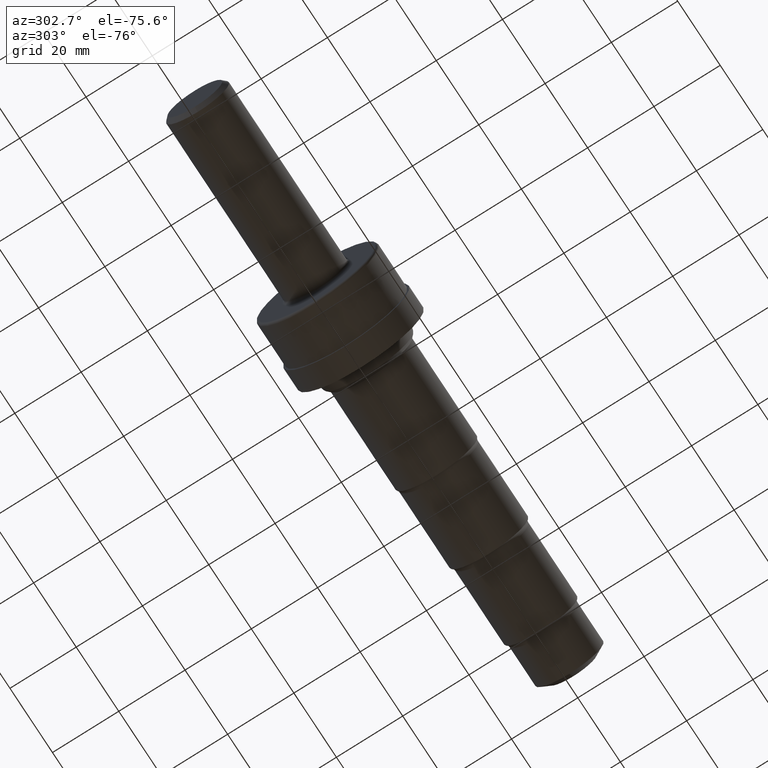
[diagram: clean part render]
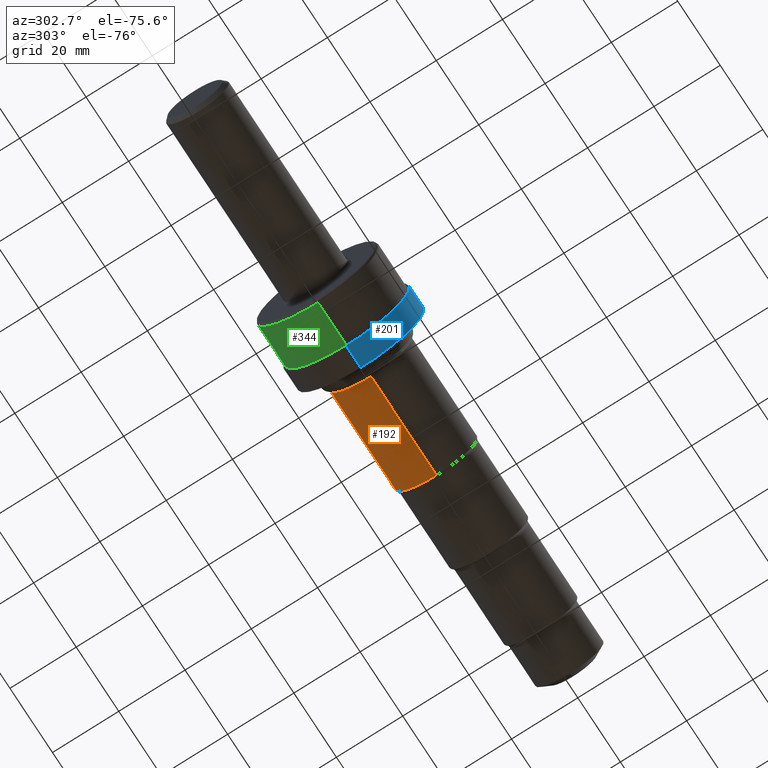
[diagram: same view with three faces highlighted in distinct colors, each labeled with its STEP entity id]
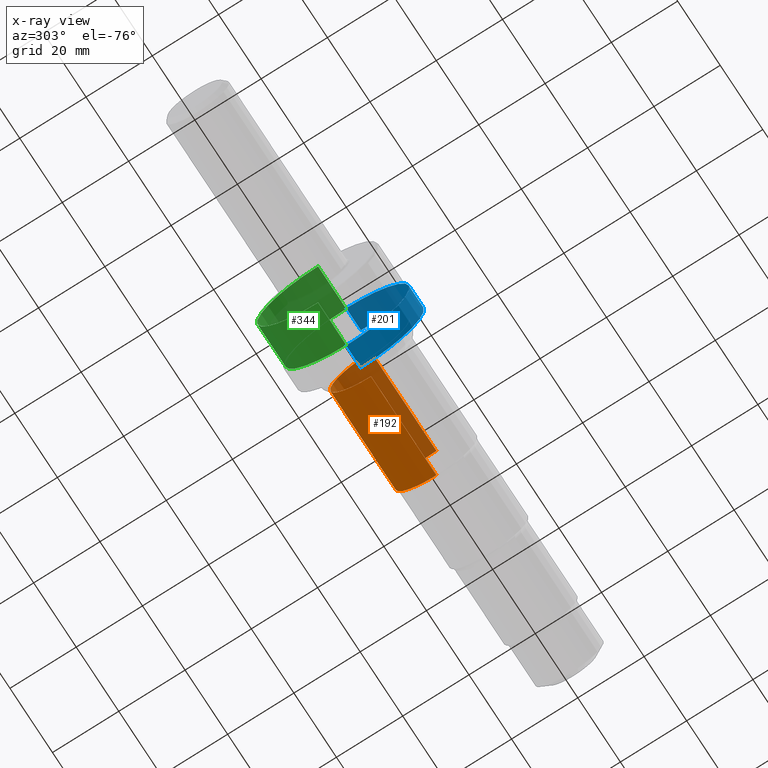
[diagram: x-ray of the same camera — body ghosted, the three highlighted faces saturated]
A machine part, auxiliary view with three faces highlighted in distinct colors.
The next image is the same camera in x-ray (body ghosted, the three faces saturated) — at least one of them is partly hidden behind the body in this view.
Their STEP definitions:

[orange] entity #192 — the highlighted cylindrical surface (partial cylindrical patch) has radius 12.3825 mm, axis along (-1, -0, -0).
#18 = EDGE_LOOP ( 'NONE', ( #532, #853, #24, #259 ) ) ;
#24 = ORIENTED_EDGE ( 'NONE', *, *, #966, .F. ) ;
#36 = VERTEX_POINT ( 'NONE', #974 ) ;
#39 = AXIS2_PLACEMENT_3D ( 'NONE', #1030, #559, #60 ) ;
#46 = CARTESIAN_POINT ( 'NONE',  ( 3.258523011444504291, 0.0000000000000000000, 0.0000000000000000000 ) ) ;
#60 = DIRECTION ( 'NONE',  ( 0.0000000000000000000, 0.0000000000000000000, 1.000000000000000000 ) ) ;
#61 = DIRECTION ( 'NONE',  ( -1.000000000000000000, -0.0000000000000000000, -0.0000000000000000000 ) ) ;
#63 = DIRECTION ( 'NONE',  ( 0.0000000000000000000, 0.0000000000000000000, 1.000000000000000000 ) ) ;
#111 = AXIS2_PLACEMENT_3D ( 'NONE', #46, #864, #63 ) ;
#126 = EDGE_CURVE ( 'NONE', #441, #36, #348, .T. ) ;
#178 = VECTOR ( 'NONE', #61, 39.37007874015748143 ) ;
#181 = CARTESIAN_POINT ( 'NONE',  ( 4.469999999999999751, 0.0000000000000000000, 0.4874999999999999889 ) ) ;
#191 = CIRCLE ( 'NONE', #39, 0.4874999999999999889 ) ;
#192 = ADVANCED_FACE ( 'NONE', ( #517 ), #273, .T. ) ;
#212 = CARTESIAN_POINT ( 'NONE',  ( 0.0000000000000000000, 0.0000000000000000000, 0.0000000000000000000 ) ) ;
#259 = ORIENTED_EDGE ( 'NONE', *, *, #385, .F. ) ;
#273 = CYLINDRICAL_SURFACE ( 'NONE', #1032, 0.4874999999999999889 ) ;
#348 = LINE ( 'NONE', #957, #369 ) ;
#366 = VERTEX_POINT ( 'NONE', #433 ) ;
#369 = VECTOR ( 'NONE', #390, 39.37007874015748143 ) ;
#385 = EDGE_CURVE ( 'NONE', #534, #366, #832, .T. ) ;
#390 = DIRECTION ( 'NONE',  ( -1.000000000000000000, -0.0000000000000000000, -0.0000000000000000000 ) ) ;
#433 = CARTESIAN_POINT ( 'NONE',  ( 3.258523011444504291, 0.0000000000000000000, 0.4874999999999999889 ) ) ;
#441 = VERTEX_POINT ( 'NONE', #522 ) ;
#517 = FACE_OUTER_BOUND ( 'NONE', #18, .T. ) ;
#522 = CARTESIAN_POINT ( 'NONE',  ( 4.469999999999999751, 5.970153145843346608E-17, -0.4874999999999999889 ) ) ;
#532 = ORIENTED_EDGE ( 'NONE', *, *, #766, .T. ) ;
#534 = VERTEX_POINT ( 'NONE', #181 ) ;
#554 = DIRECTION ( 'NONE',  ( -1.000000000000000000, -0.0000000000000000000, -0.0000000000000000000 ) ) ;
#559 = DIRECTION ( 'NONE',  ( -1.000000000000000000, -0.0000000000000000000, -0.0000000000000000000 ) ) ;
#683 = CARTESIAN_POINT ( 'NONE',  ( 0.0000000000000000000, 0.0000000000000000000, 0.4874999999999999889 ) ) ;
#766 = EDGE_CURVE ( 'NONE', #534, #441, #191, .T. ) ;
#832 = LINE ( 'NONE', #683, #178 ) ;
#853 = ORIENTED_EDGE ( 'NONE', *, *, #126, .T. ) ;
#864 = DIRECTION ( 'NONE',  ( -1.000000000000000000, -0.0000000000000000000, -0.0000000000000000000 ) ) ;
#895 = CIRCLE ( 'NONE', #111, 0.4874999999999999889 ) ;
#923 = DIRECTION ( 'NONE',  ( 0.0000000000000000000, 0.0000000000000000000, 1.000000000000000000 ) ) ;
#957 = CARTESIAN_POINT ( 'NONE',  ( 0.0000000000000000000, 5.970153145843346608E-17, -0.4874999999999999889 ) ) ;
#966 = EDGE_CURVE ( 'NONE', #366, #36, #895, .T. ) ;
#974 = CARTESIAN_POINT ( 'NONE',  ( 3.258523011444504291, 6.279517367087336711E-17, -0.4874999999999999889 ) ) ;
#1030 = CARTESIAN_POINT ( 'NONE',  ( 4.469999999999999751, 0.0000000000000000000, 0.0000000000000000000 ) ) ;
#1032 = AXIS2_PLACEMENT_3D ( 'NONE', #212, #554, #923 ) ;

[blue] entity #201 — the highlighted cylindrical surface (partial cylindrical patch) has radius 19.05 mm, axis along (-1, -0, -0).
#33 = AXIS2_PLACEMENT_3D ( 'NONE', #1005, #438, #535 ) ;
#57 = EDGE_LOOP ( 'NONE', ( #531, #971, #444, #590 ) ) ;
#108 = EDGE_CURVE ( 'NONE', #826, #507, #987, .T. ) ;
#144 = VERTEX_POINT ( 'NONE', #632 ) ;
#149 = DIRECTION ( 'NONE',  ( 0.0000000000000000000, 0.0000000000000000000, 1.000000000000000000 ) ) ;
#166 = EDGE_CURVE ( 'NONE', #917, #144, #332, .T. ) ;
#179 = CARTESIAN_POINT ( 'NONE',  ( 3.069999999999999840, 0.0000000000000000000, 0.7500000000000001110 ) ) ;
#201 = ADVANCED_FACE ( 'NONE', ( #919 ), #902, .T. ) ;
#231 = CARTESIAN_POINT ( 'NONE',  ( 3.069999999999999840, 0.0000000000000000000, 0.0000000000000000000 ) ) ;
#285 = EDGE_CURVE ( 'NONE', #826, #917, #410, .T. ) ;
#328 = CARTESIAN_POINT ( 'NONE',  ( 2.799999999999999822, 9.184850993605150903E-17, -0.7500000000000001110 ) ) ;
#332 = CIRCLE ( 'NONE', #716, 0.7500000000000001110 ) ;
#333 = EDGE_CURVE ( 'NONE', #507, #144, #912, .T. ) ;
#410 = LINE ( 'NONE', #1019, #837 ) ;
#438 = DIRECTION ( 'NONE',  ( -1.000000000000000000, -0.0000000000000000000, -0.0000000000000000000 ) ) ;
#444 = ORIENTED_EDGE ( 'NONE', *, *, #333, .T. ) ;
#457 = CARTESIAN_POINT ( 'NONE',  ( 0.0000000000000000000, 0.0000000000000000000, 0.7500000000000001110 ) ) ;
#471 = DIRECTION ( 'NONE',  ( -1.000000000000000000, -0.0000000000000000000, -0.0000000000000000000 ) ) ;
#488 = DIRECTION ( 'NONE',  ( -1.000000000000000000, -0.0000000000000000000, -0.0000000000000000000 ) ) ;
#507 = VERTEX_POINT ( 'NONE', #179 ) ;
#531 = ORIENTED_EDGE ( 'NONE', *, *, #285, .F. ) ;
#535 = DIRECTION ( 'NONE',  ( 0.0000000000000000000, 0.0000000000000000000, 1.000000000000000000 ) ) ;
#590 = ORIENTED_EDGE ( 'NONE', *, *, #166, .F. ) ;
#632 = CARTESIAN_POINT ( 'NONE',  ( 2.799999999999999822, 0.0000000000000000000, 0.7500000000000001110 ) ) ;
#641 = DIRECTION ( 'NONE',  ( -1.000000000000000000, -0.0000000000000000000, -0.0000000000000000000 ) ) ;
#696 = VECTOR ( 'NONE', #488, 39.37007874015748143 ) ;
#716 = AXIS2_PLACEMENT_3D ( 'NONE', #1027, #471, #947 ) ;
#725 = DIRECTION ( 'NONE',  ( -1.000000000000000000, -0.0000000000000000000, -0.0000000000000000000 ) ) ;
#826 = VERTEX_POINT ( 'NONE', #949 ) ;
#837 = VECTOR ( 'NONE', #641, 39.37007874015748143 ) ;
#902 = CYLINDRICAL_SURFACE ( 'NONE', #33, 0.7500000000000001110 ) ;
#912 = LINE ( 'NONE', #457, #696 ) ;
#917 = VERTEX_POINT ( 'NONE', #328 ) ;
#919 = FACE_OUTER_BOUND ( 'NONE', #57, .T. ) ;
#947 = DIRECTION ( 'NONE',  ( 0.0000000000000000000, 0.0000000000000000000, 1.000000000000000000 ) ) ;
#949 = CARTESIAN_POINT ( 'NONE',  ( 3.069999999999999840, 9.184850993605150903E-17, -0.7500000000000001110 ) ) ;
#971 = ORIENTED_EDGE ( 'NONE', *, *, #108, .T. ) ;
#987 = CIRCLE ( 'NONE', #993, 0.7500000000000001110 ) ;
#993 = AXIS2_PLACEMENT_3D ( 'NONE', #231, #725, #149 ) ;
#1005 = CARTESIAN_POINT ( 'NONE',  ( 0.0000000000000000000, 0.0000000000000000000, 0.0000000000000000000 ) ) ;
#1019 = CARTESIAN_POINT ( 'NONE',  ( 0.0000000000000000000, 9.184850993605150903E-17, -0.7500000000000001110 ) ) ;
#1027 = CARTESIAN_POINT ( 'NONE',  ( 2.799999999999999822, 0.0000000000000000000, 0.0000000000000000000 ) ) ;

[green] entity #344 — the highlighted cylindrical surface (partial cylindrical patch) has radius 18.415 mm, axis along (-1, -0, -0).
#128 = CARTESIAN_POINT ( 'NONE',  ( 0.0000000000000000000, 0.0000000000000000000, 0.0000000000000000000 ) ) ;
#134 = CIRCLE ( 'NONE', #316, 0.7249999999999998668 ) ;
#223 = CARTESIAN_POINT ( 'NONE',  ( 0.0000000000000000000, 0.0000000000000000000, 0.7249999999999998668 ) ) ;
#240 = CARTESIAN_POINT ( 'NONE',  ( 2.799999999999999822, 0.0000000000000000000, 0.0000000000000000000 ) ) ;
#276 = AXIS2_PLACEMENT_3D ( 'NONE', #128, #357, #644 ) ;
#278 = CARTESIAN_POINT ( 'NONE',  ( 0.0000000000000000000, 8.878689293818309581E-17, -0.7249999999999998668 ) ) ;
#292 = ORIENTED_EDGE ( 'NONE', *, *, #475, .T. ) ;
#314 = EDGE_CURVE ( 'NONE', #509, #953, #817, .T. ) ;
#316 = AXIS2_PLACEMENT_3D ( 'NONE', #429, #764, #350 ) ;
#344 = ADVANCED_FACE ( 'NONE', ( #491 ), #893, .T. ) ;
#350 = DIRECTION ( 'NONE',  ( 0.0000000000000000000, 0.0000000000000000000, 1.000000000000000000 ) ) ;
#353 = CARTESIAN_POINT ( 'NONE',  ( 2.799999999999999822, 0.0000000000000000000, 0.7249999999999998668 ) ) ;
#357 = DIRECTION ( 'NONE',  ( -1.000000000000000000, -0.0000000000000000000, -0.0000000000000000000 ) ) ;
#361 = DIRECTION ( 'NONE',  ( -1.000000000000000000, -0.0000000000000000000, -0.0000000000000000000 ) ) ;
#368 = ORIENTED_EDGE ( 'NONE', *, *, #499, .F. ) ;
#400 = DIRECTION ( 'NONE',  ( -1.000000000000000000, -0.0000000000000000000, -0.0000000000000000000 ) ) ;
#429 = CARTESIAN_POINT ( 'NONE',  ( 2.279999999999999805, 0.0000000000000000000, 0.0000000000000000000 ) ) ;
#475 = EDGE_CURVE ( 'NONE', #1047, #739, #781, .T. ) ;
#491 = FACE_OUTER_BOUND ( 'NONE', #530, .T. ) ;
#493 = DIRECTION ( 'NONE',  ( 0.0000000000000000000, 0.0000000000000000000, 1.000000000000000000 ) ) ;
#494 = CIRCLE ( 'NONE', #859, 0.7249999999999998668 ) ;
#499 = EDGE_CURVE ( 'NONE', #953, #739, #134, .T. ) ;
#509 = VERTEX_POINT ( 'NONE', #353 ) ;
#530 = EDGE_LOOP ( 'NONE', ( #878, #292, #368, #754 ) ) ;
#550 = VECTOR ( 'NONE', #361, 39.37007874015748143 ) ;
#644 = DIRECTION ( 'NONE',  ( 0.0000000000000000000, 0.0000000000000000000, 1.000000000000000000 ) ) ;
#718 = CARTESIAN_POINT ( 'NONE',  ( 2.799999999999999822, 8.878689293818309581E-17, -0.7249999999999998668 ) ) ;
#739 = VERTEX_POINT ( 'NONE', #782 ) ;
#754 = ORIENTED_EDGE ( 'NONE', *, *, #314, .F. ) ;
#764 = DIRECTION ( 'NONE',  ( -1.000000000000000000, -0.0000000000000000000, -0.0000000000000000000 ) ) ;
#781 = LINE ( 'NONE', #278, #550 ) ;
#782 = CARTESIAN_POINT ( 'NONE',  ( 2.279999999999999805, 8.878689293818309581E-17, -0.7249999999999998668 ) ) ;
#810 = CARTESIAN_POINT ( 'NONE',  ( 2.279999999999999805, 0.0000000000000000000, 0.7249999999999998668 ) ) ;
#817 = LINE ( 'NONE', #223, #933 ) ;
#859 = AXIS2_PLACEMENT_3D ( 'NONE', #240, #400, #493 ) ;
#873 = EDGE_CURVE ( 'NONE', #509, #1047, #494, .T. ) ;
#878 = ORIENTED_EDGE ( 'NONE', *, *, #873, .T. ) ;
#893 = CYLINDRICAL_SURFACE ( 'NONE', #276, 0.7249999999999998668 ) ;
#933 = VECTOR ( 'NONE', #1025, 39.37007874015748143 ) ;
#953 = VERTEX_POINT ( 'NONE', #810 ) ;
#1025 = DIRECTION ( 'NONE',  ( -1.000000000000000000, -0.0000000000000000000, -0.0000000000000000000 ) ) ;
#1047 = VERTEX_POINT ( 'NONE', #718 ) ;